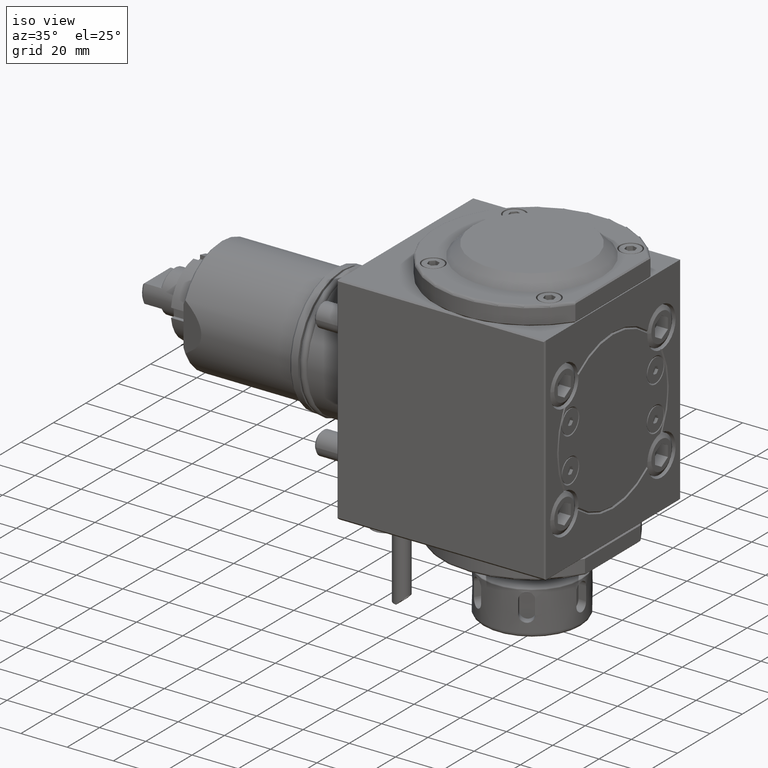
[diagram: clean part render]
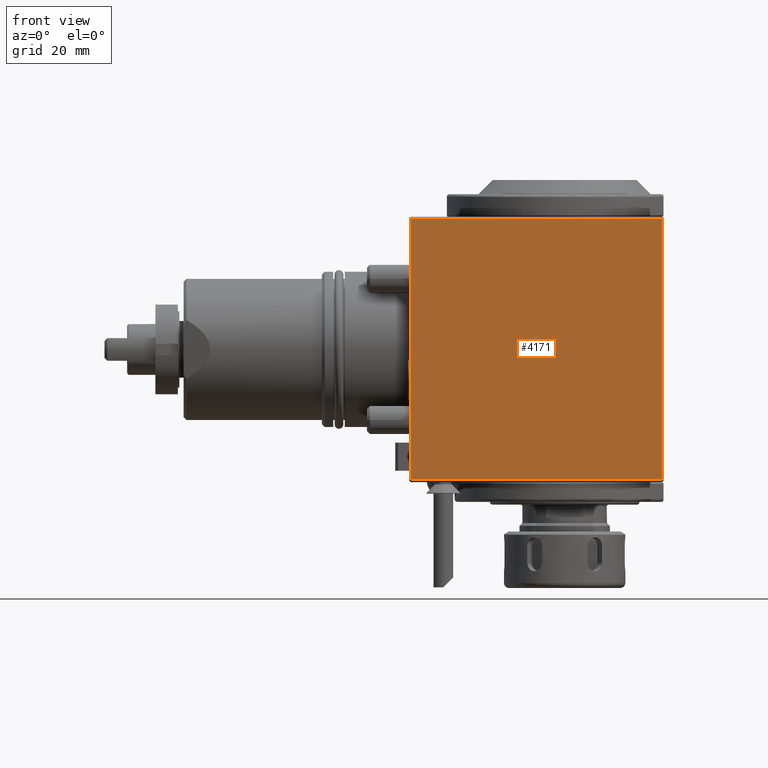
[diagram: tour spotlight — one face highlighted and labeled with its STEP entity id]
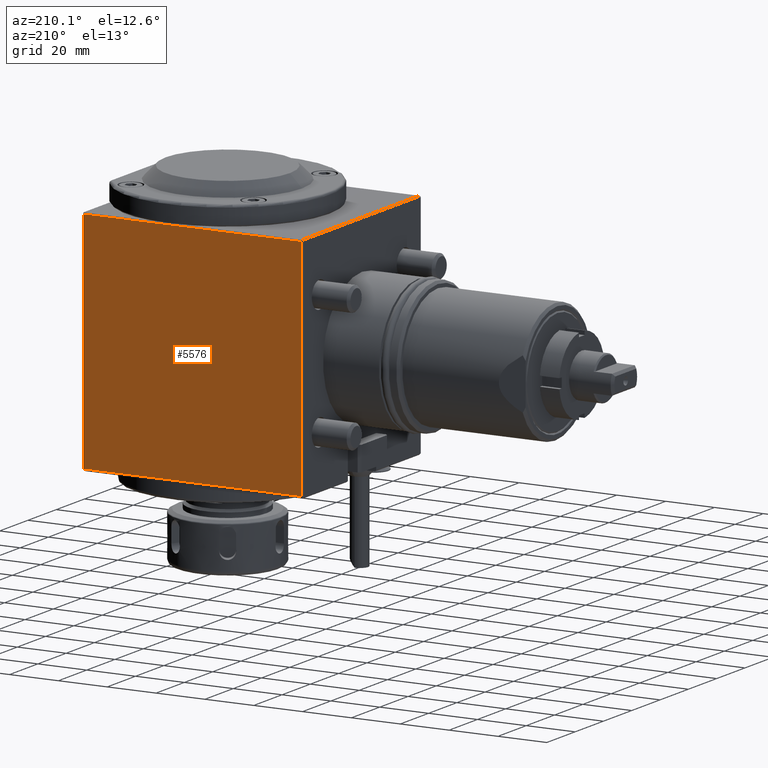
[diagram: tour spotlight — one face highlighted and labeled with its STEP entity id]
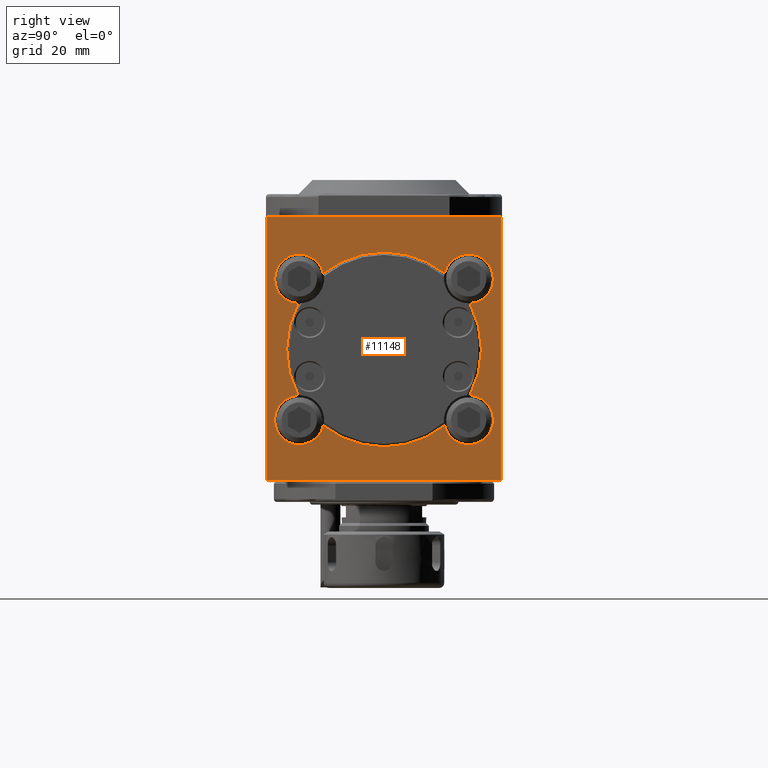
[diagram: tour spotlight — one face highlighted and labeled with its STEP entity id]
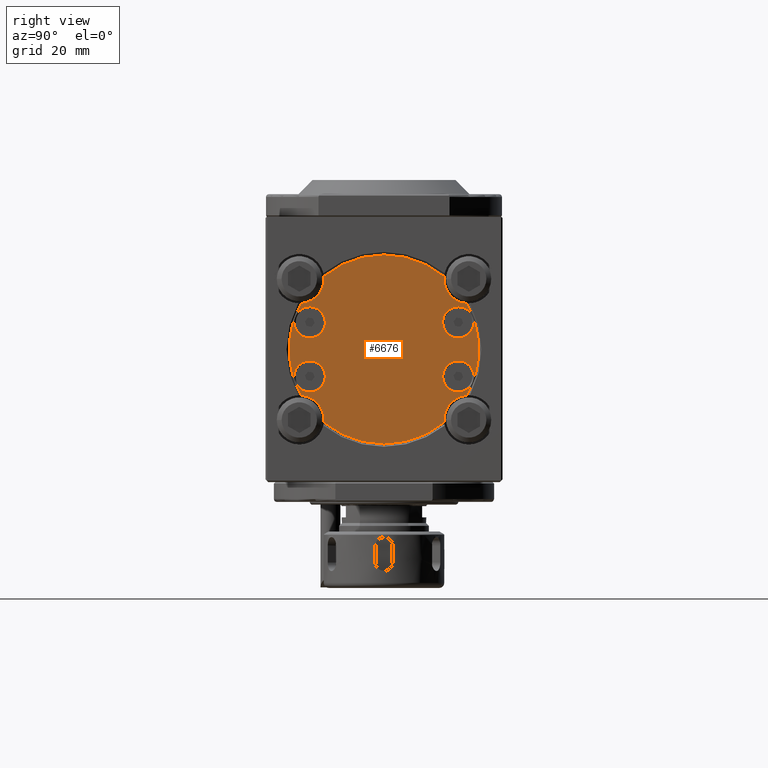
[diagram: tour spotlight — one face highlighted and labeled with its STEP entity id]
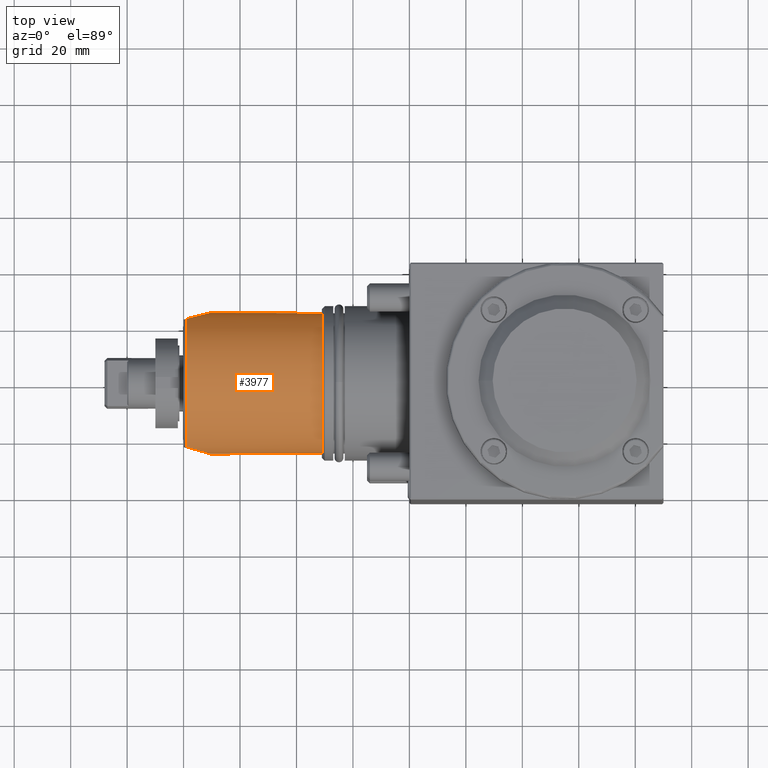
[diagram: tour spotlight — one face highlighted and labeled with its STEP entity id]
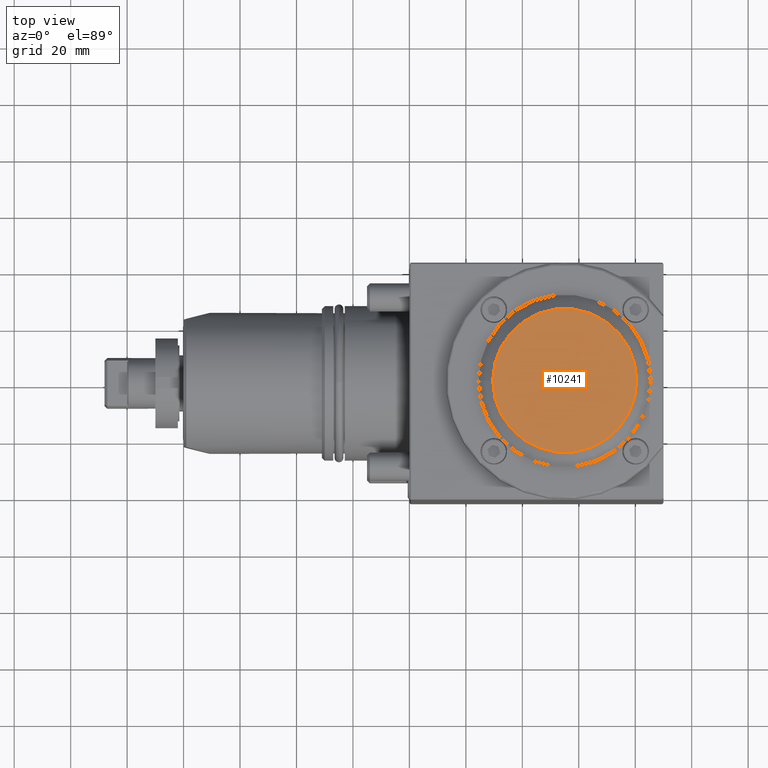
[diagram: tour spotlight — one face highlighted and labeled with its STEP entity id]
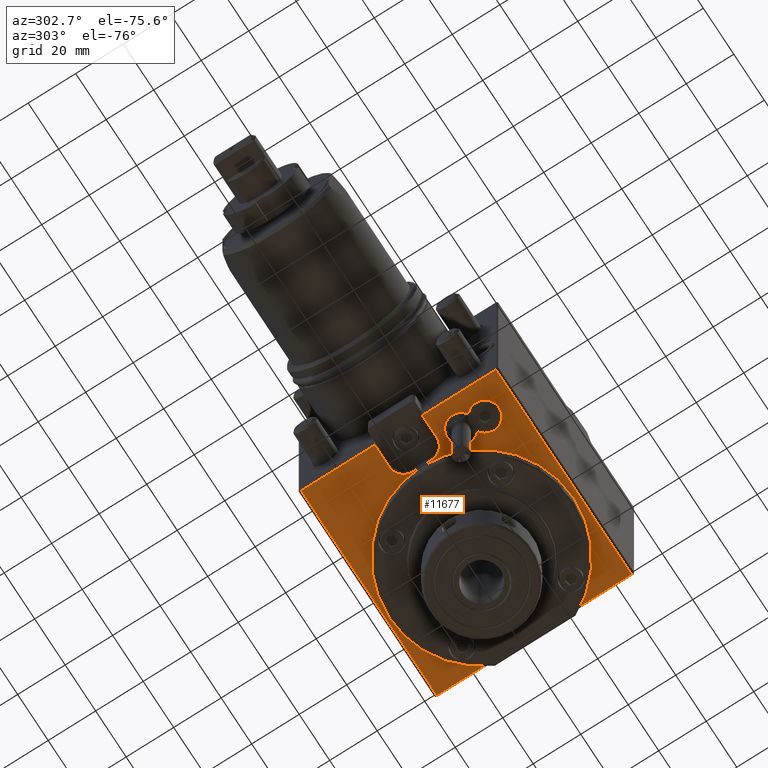
[diagram: tour spotlight — one face highlighted and labeled with its STEP entity id]
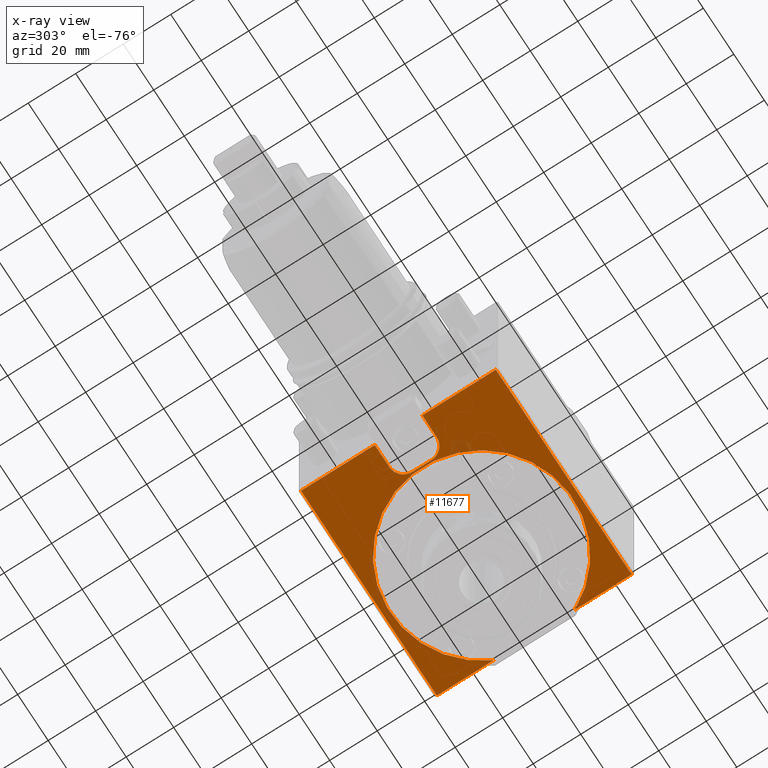
[diagram: x-ray of the same camera — body ghosted, this tour face saturated]
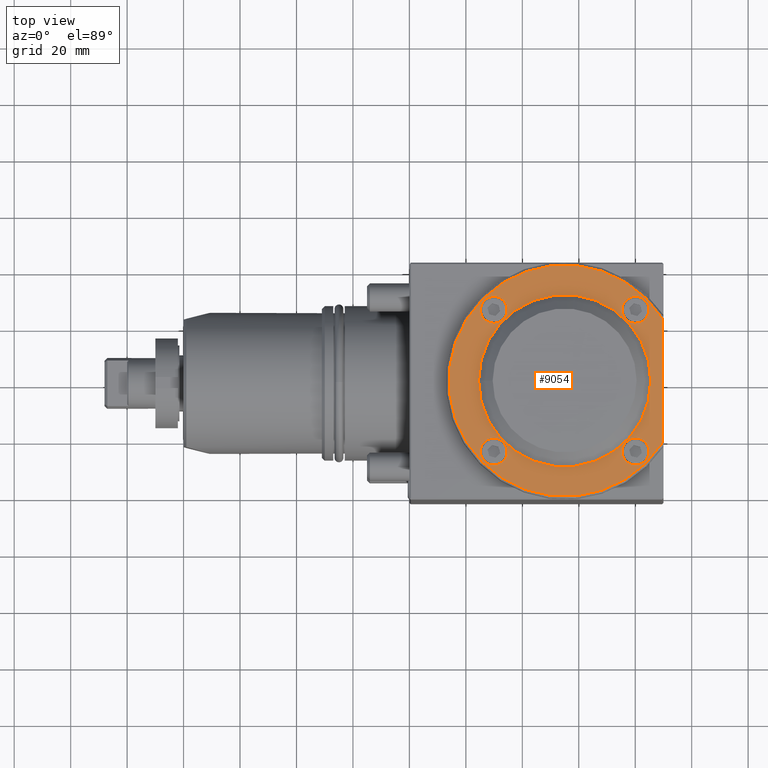
[diagram: tour spotlight — one face highlighted and labeled with its STEP entity id]
A machine part: a face-by-face anatomy tour. The part has 435 B-rep faces; the first image is the clean iso view, then the 8 largest visible faces are spotlighted one at a time (largest first), each with its STEP entity span.

Face 1 — front view, entity #4171. In plain terms, the highlighted planar face has unit normal (0, -1, 0).
Definition (entity closure, byte-faithful):
#182 = CARTESIAN_POINT ( 'NONE',  ( 0.5000000000026987301, -41.99999999999984368, 46.50000000000013500 ) ) ;
#417 = EDGE_CURVE ( 'NONE', #794, #7356, #2787, .T. ) ;
#794 = VERTEX_POINT ( 'NONE', #1497 ) ;
#914 = DIRECTION ( 'NONE',  ( 6.982962677686266711E-15, 3.568296771711887931E-15, 1.000000000000000000 ) ) ;
#1136 = DIRECTION ( 'NONE',  ( -6.982962677686266711E-15, -3.568296771711887931E-15, -1.000000000000000000 ) ) ;
#1159 = DIRECTION ( 'NONE',  ( 1.000000000000000000, -2.438088387897967896E-29, -6.982962677686266711E-15 ) ) ;
#1497 = CARTESIAN_POINT ( 'NONE',  ( 89.49999999999967315, -42.00000000000016342, -45.99999762080688015 ) ) ;
#1939 = CARTESIAN_POINT ( 'NONE',  ( 2.051885448576522184E-12, -42.00000000000016342, -45.99999762080625487 ) ) ;
#2226 = CARTESIAN_POINT ( 'NONE',  ( 2.697809479648681829E-12, -41.99999999999984368, 46.50000000000014211 ) ) ;
#2250 = EDGE_CURVE ( 'NONE', #6178, #794, #8640, .T. ) ;
#2544 = VECTOR ( 'NONE', #914, 1000.000000000000000 ) ;
#2787 = LINE ( 'NONE', #4531, #2544 ) ;
#3079 = VECTOR ( 'NONE', #1136, 1000.000000000000000 ) ;
#3378 = DIRECTION ( 'NONE',  ( 5.363993007928266549E-31, -1.000000000000000000, 3.568296771711887931E-15 ) ) ;
#3981 = VECTOR ( 'NONE', #1159, 1000.000000000000000 ) ;
#4061 = FACE_OUTER_BOUND ( 'NONE', #6567, .T. ) ;
#4171 = ADVANCED_FACE ( 'NONE', ( #4061 ), #10704, .T. ) ;
#4531 = CARTESIAN_POINT ( 'NONE',  ( 89.50000000000031264, -41.99999999999984368, 46.49999999999952394 ) ) ;
#5162 = VECTOR ( 'NONE', #8702, 1000.000000000000000 ) ;
#5166 = CARTESIAN_POINT ( 'NONE',  ( 0.5000000000020538016, -42.00000000000016342, -45.99999762080626198 ) ) ;
#5718 = LINE ( 'NONE', #10376, #3079 ) ;
#5958 = ORIENTED_EDGE ( 'NONE', *, *, #417, .T. ) ;
#5981 = DIRECTION ( 'NONE',  ( -6.982962677686266711E-15, -3.568296771711887931E-15, -1.000000000000000000 ) ) ;
#6158 = CARTESIAN_POINT ( 'NONE',  ( 2.697809479648681829E-12, -41.99999999999984368, 46.50000000000014211 ) ) ;
#6178 = VERTEX_POINT ( 'NONE', #5166 ) ;
#6269 = AXIS2_PLACEMENT_3D ( 'NONE', #2226, #3378, #5981 ) ;
#6567 = EDGE_LOOP ( 'NONE', ( #8766, #11029, #6622, #5958 ) ) ;
#6622 = ORIENTED_EDGE ( 'NONE', *, *, #2250, .T. ) ;
#7063 = LINE ( 'NONE', #6158, #5162 ) ;
#7342 = VERTEX_POINT ( 'NONE', #182 ) ;
#7356 = VERTEX_POINT ( 'NONE', #7365 ) ;
#7365 = CARTESIAN_POINT ( 'NONE',  ( 89.50000000000031264, -41.99999999999984368, 46.49999999999952394 ) ) ;
#8151 = EDGE_CURVE ( 'NONE', #7342, #6178, #5718, .T. ) ;
#8640 = LINE ( 'NONE', #1939, #3981 ) ;
#8702 = DIRECTION ( 'NONE',  ( 1.000000000000000000, -2.438088387897967896E-29, -6.982962677686266711E-15 ) ) ;
#8766 = ORIENTED_EDGE ( 'NONE', *, *, #10018, .F. ) ;
#10018 = EDGE_CURVE ( 'NONE', #7342, #7356, #7063, .T. ) ;
#10376 = CARTESIAN_POINT ( 'NONE',  ( 0.5000000000020518032, -42.00000000000016342, -45.99999762080626198 ) ) ;
#10704 = PLANE ( 'NONE',  #6269 ) ;
#11029 = ORIENTED_EDGE ( 'NONE', *, *, #8151, .T. ) ;

Face 2 — auxiliary view, entity #5576. In plain terms, the highlighted planar face has unit normal (-0, 1, -0).
Definition (entity closure, byte-faithful):
#517 = LINE ( 'NONE', #9624, #3415 ) ;
#692 = VECTOR ( 'NONE', #3121, 1000.000000000000000 ) ;
#1448 = DIRECTION ( 'NONE',  ( 6.982962677686266711E-15, 3.568296771711887931E-15, 1.000000000000000000 ) ) ;
#1748 = VERTEX_POINT ( 'NONE', #7041 ) ;
#2050 = ORIENTED_EDGE ( 'NONE', *, *, #7950, .T. ) ;
#2369 = LINE ( 'NONE', #11628, #8633 ) ;
#2425 = DIRECTION ( 'NONE',  ( 1.000000000000000000, -2.438088387897967896E-29, -6.982962677686266711E-15 ) ) ;
#2656 = ORIENTED_EDGE ( 'NONE', *, *, #6452, .T. ) ;
#3121 = DIRECTION ( 'NONE',  ( 6.982962677686266711E-15, 3.568296771711887931E-15, 1.000000000000000000 ) ) ;
#3258 = VERTEX_POINT ( 'NONE', #8996 ) ;
#3316 = DIRECTION ( 'NONE',  ( -5.363993007928266549E-31, 1.000000000000000000, -3.568296771711887931E-15 ) ) ;
#3415 = VECTOR ( 'NONE', #2425, 1000.000000000000000 ) ;
#3880 = CARTESIAN_POINT ( 'NONE',  ( 0.5000000000027007285, 42.00000000000016342, 46.49999999999984368 ) ) ;
#3893 = CARTESIAN_POINT ( 'NONE',  ( 89.49999999999967315, 41.99999999999984368, -45.99999762080717147 ) ) ;
#4616 = EDGE_CURVE ( 'NONE', #3258, #5882, #7721, .T. ) ;
#5105 = CARTESIAN_POINT ( 'NONE',  ( 89.49999999999967315, 41.99999999999984368, -45.99999762080717147 ) ) ;
#5204 = DIRECTION ( 'NONE',  ( 1.000000000000000000, -2.438088387897967896E-29, -6.982962677686266711E-15 ) ) ;
#5576 = ADVANCED_FACE ( 'NONE', ( #5859 ), #11368, .T. ) ;
#5627 = LINE ( 'NONE', #3893, #6356 ) ;
#5859 = FACE_OUTER_BOUND ( 'NONE', #10113, .T. ) ;
#5882 = VERTEX_POINT ( 'NONE', #3880 ) ;
#5950 = VERTEX_POINT ( 'NONE', #5105 ) ;
#6356 = VECTOR ( 'NONE', #10230, 1000.000000000000000 ) ;
#6396 = EDGE_CURVE ( 'NONE', #3258, #5950, #2369, .T. ) ;
#6452 = EDGE_CURVE ( 'NONE', #5882, #1748, #517, .T. ) ;
#7041 = CARTESIAN_POINT ( 'NONE',  ( 89.50000000000031264, 42.00000000000016342, 46.49999999999923261 ) ) ;
#7721 = LINE ( 'NONE', #11410, #692 ) ;
#7898 = ORIENTED_EDGE ( 'NONE', *, *, #6396, .F. ) ;
#7950 = EDGE_CURVE ( 'NONE', #1748, #5950, #5627, .T. ) ;
#8633 = VECTOR ( 'NONE', #5204, 1000.000000000000000 ) ;
#8996 = CARTESIAN_POINT ( 'NONE',  ( 0.5000000000020508040, 41.99999999999984368, -45.99999762080655330 ) ) ;
#9624 = CARTESIAN_POINT ( 'NONE',  ( 2.697809479648681829E-12, 42.00000000000016342, 46.49999999999985079 ) ) ;
#9690 = ORIENTED_EDGE ( 'NONE', *, *, #4616, .T. ) ;
#10113 = EDGE_LOOP ( 'NONE', ( #7898, #9690, #2656, #2050 ) ) ;
#10230 = DIRECTION ( 'NONE',  ( -6.982962677686266711E-15, -3.568296771711887931E-15, -1.000000000000000000 ) ) ;
#10576 = CARTESIAN_POINT ( 'NONE',  ( 2.051885448576522184E-12, 41.99999999999984368, -45.99999762080654619 ) ) ;
#11140 = AXIS2_PLACEMENT_3D ( 'NONE', #10576, #3316, #1448 ) ;
#11368 = PLANE ( 'NONE',  #11140 ) ;
#11410 = CARTESIAN_POINT ( 'NONE',  ( 0.5000000000026977309, 42.00000000000016342, 46.49999999999984368 ) ) ;
#11628 = CARTESIAN_POINT ( 'NONE',  ( 2.051885448576522184E-12, 41.99999999999984368, -45.99999762080654619 ) ) ;

Face 3 — right view, entity #11148. In plain terms, the highlighted planar face has unit normal (1, -0, -0).
Definition (entity closure, byte-faithful):
#58 = DIRECTION ( 'NONE',  ( 0.000000000000000000, 1.000000000000000000, -3.491481338843133355E-15 ) ) ;
#89 = VECTOR ( 'NONE', #9948, 1000.000000000000000 ) ;
#125 = ORIENTED_EDGE ( 'NONE', *, *, #5646, .F. ) ;
#153 = CARTESIAN_POINT ( 'NONE',  ( 90.00000000000011369, -30.42774064309234561, 16.26046122828903151 ) ) ;
#211 = ORIENTED_EDGE ( 'NONE', *, *, #2384, .F. ) ;
#315 = DIRECTION ( 'NONE',  ( 1.000000000000000000, -2.438088387897967896E-29, -6.982962677686266711E-15 ) ) ;
#423 = CARTESIAN_POINT ( 'NONE',  ( 89.99999999999967315, -41.50000000000016342, -46.49999762080688726 ) ) ;
#466 = DIRECTION ( 'NONE',  ( 0.000000000000000000, 1.000000000000000000, -3.491481338843133355E-15 ) ) ;
#641 = VECTOR ( 'NONE', #4810, 1000.000000000000000 ) ;
#667 = EDGE_CURVE ( 'NONE', #6861, #5429, #1561, .T. ) ;
#703 = VECTOR ( 'NONE', #7404, 1000.000000000000000 ) ;
#710 = CARTESIAN_POINT ( 'NONE',  ( 90.00000000000000000, 2.143061119186963224E-15, -6.291937854916596284E-13 ) ) ;
#898 = CARTESIAN_POINT ( 'NONE',  ( 90.00000000000000000, 2.143061119186963224E-15, -6.291937854916596284E-13 ) ) ;
#950 = AXIS2_PLACEMENT_3D ( 'NONE', #6159, #9892, #7243 ) ;
#957 = CIRCLE ( 'NONE', #4804, 8.750000000000000000 ) ;
#1037 = DIRECTION ( 'NONE',  ( 0.000000000000000000, 1.000000000000000000, -3.568574007723717789E-15 ) ) ;
#1121 = CARTESIAN_POINT ( 'NONE',  ( 90.00000000000032685, -41.49999999999983658, 46.99999999999951683 ) ) ;
#1193 = EDGE_CURVE ( 'NONE', #2084, #3783, #7769, .T. ) ;
#1287 = AXIS2_PLACEMENT_3D ( 'NONE', #5760, #11157, #4791 ) ;
#1299 = EDGE_CURVE ( 'NONE', #10773, #7850, #7297, .T. ) ;
#1524 = EDGE_CURVE ( 'NONE', #3783, #10773, #3738, .T. ) ;
#1561 = CIRCLE ( 'NONE', #4652, 8.750000000000000000 ) ;
#1774 = VERTEX_POINT ( 'NONE', #8974 ) ;
#2084 = VERTEX_POINT ( 'NONE', #10094 ) ;
#2175 = DIRECTION ( 'NONE',  ( 0.000000000000000000, 1.000000000000000000, -3.568574007723717789E-15 ) ) ;
#2242 = CARTESIAN_POINT ( 'NONE',  ( 89.99999999999980105, -21.48086591430129388, -26.99671090284605057 ) ) ;
#2273 = CIRCLE ( 'NONE', #3238, 8.750000000000000000 ) ;
#2384 = EDGE_CURVE ( 'NONE', #5429, #3440, #5322, .T. ) ;
#2431 = VERTEX_POINT ( 'NONE', #8021 ) ;
#2562 = CARTESIAN_POINT ( 'NONE',  ( 90.00000000000011369, 30.42774064309140414, 16.26046122829066576 ) ) ;
#2775 = EDGE_CURVE ( 'NONE', #2981, #1774, #7466, .T. ) ;
#2981 = VERTEX_POINT ( 'NONE', #153 ) ;
#3023 = CARTESIAN_POINT ( 'NONE',  ( 90.00000000000017053, 29.99999999998043876, 25.00000000000116884 ) ) ;
#3238 = AXIS2_PLACEMENT_3D ( 'NONE', #3023, #315, #3944 ) ;
#3392 = CARTESIAN_POINT ( 'NONE',  ( 89.99999999999967315, 41.49999999999984368, -46.49999762080717858 ) ) ;
#3440 = VERTEX_POINT ( 'NONE', #2562 ) ;
#3596 = CARTESIAN_POINT ( 'NONE',  ( 90.00000000000062528, 41.50000000000031264, 88.49999999999923261 ) ) ;
#3738 = LINE ( 'NONE', #9407, #641 ) ;
#3783 = VERTEX_POINT ( 'NONE', #1121 ) ;
#3944 = DIRECTION ( 'NONE',  ( 0.000000000000000000, 1.000000000000000000, -3.568574007723717789E-15 ) ) ;
#4003 = ORIENTED_EDGE ( 'NONE', *, *, #11814, .F. ) ;
#4230 = CIRCLE ( 'NONE', #10998, 34.50000000000000000 ) ;
#4397 = DIRECTION ( 'NONE',  ( 0.000000000000000000, 1.000000000000000000, -3.491481338843133355E-15 ) ) ;
#4652 = AXIS2_PLACEMENT_3D ( 'NONE', #7559, #9310, #1037 ) ;
#4720 = CARTESIAN_POINT ( 'NONE',  ( 89.99999999999988631, 30.42774064309334392, -16.26046122828843821 ) ) ;
#4791 = DIRECTION ( 'NONE',  ( 0.000000000000000000, 1.000000000000000000, -3.491481338843133355E-15 ) ) ;
#4804 = AXIS2_PLACEMENT_3D ( 'NONE', #11267, #6677, #10302 ) ;
#4810 = DIRECTION ( 'NONE',  ( -6.982962677686266711E-15, -3.568296771711887931E-15, -1.000000000000000000 ) ) ;
#4929 = ORIENTED_EDGE ( 'NONE', *, *, #1193, .T. ) ;
#4957 = EDGE_CURVE ( 'NONE', #7850, #2084, #11884, .T. ) ;
#5157 = VERTEX_POINT ( 'NONE', #2242 ) ;
#5179 = CIRCLE ( 'NONE', #7702, 34.50000000000000000 ) ;
#5322 = CIRCLE ( 'NONE', #10952, 34.50000000000000000 ) ;
#5429 = VERTEX_POINT ( 'NONE', #4720 ) ;
#5646 = EDGE_CURVE ( 'NONE', #1774, #5157, #6882, .T. ) ;
#5706 = ORIENTED_EDGE ( 'NONE', *, *, #1524, .T. ) ;
#5716 = AXIS2_PLACEMENT_3D ( 'NONE', #11607, #11485, #2175 ) ;
#5760 = CARTESIAN_POINT ( 'NONE',  ( 90.00000000000000000, 2.143061119186963224E-15, -6.291937854916596284E-13 ) ) ;
#6159 = CARTESIAN_POINT ( 'NONE',  ( 90.00000000000062528, 3.020572045837078458E-13, 88.49999999999937472 ) ) ;
#6221 = FACE_OUTER_BOUND ( 'NONE', #11164, .T. ) ;
#6482 = ORIENTED_EDGE ( 'NONE', *, *, #9867, .F. ) ;
#6510 = ORIENTED_EDGE ( 'NONE', *, *, #2775, .F. ) ;
#6677 = DIRECTION ( 'NONE',  ( 1.000000000000000000, -2.438088387897967896E-29, -6.982962677686266711E-15 ) ) ;
#6816 = VECTOR ( 'NONE', #8859, 1000.000000000000000 ) ;
#6861 = VERTEX_POINT ( 'NONE', #11731 ) ;
#6882 = CIRCLE ( 'NONE', #5716, 8.750000000000000000 ) ;
#7243 = DIRECTION ( 'NONE',  ( 0.000000000000000000, 1.000000000000000000, -3.491481338843133355E-15 ) ) ;
#7297 = LINE ( 'NONE', #10994, #89 ) ;
#7404 = DIRECTION ( 'NONE',  ( 6.982962677686266711E-15, 3.568296771711887931E-15, 1.000000000000000000 ) ) ;
#7466 = CIRCLE ( 'NONE', #1287, 34.50000000000000000 ) ;
#7559 = CARTESIAN_POINT ( 'NONE',  ( 89.99999999999981526, 29.99999999998031441, -24.99999999999883116 ) ) ;
#7637 = EDGE_CURVE ( 'NONE', #10611, #2981, #957, .T. ) ;
#7702 = AXIS2_PLACEMENT_3D ( 'NONE', #710, #8384, #58 ) ;
#7768 = ORIENTED_EDGE ( 'NONE', *, *, #1299, .T. ) ;
#7769 = LINE ( 'NONE', #11401, #6816 ) ;
#7850 = VERTEX_POINT ( 'NONE', #3392 ) ;
#8021 = CARTESIAN_POINT ( 'NONE',  ( 90.00000000000018474, 21.48086591426739389, 26.99671090287174380 ) ) ;
#8211 = ORIENTED_EDGE ( 'NONE', *, *, #11639, .F. ) ;
#8384 = DIRECTION ( 'NONE',  ( 1.000000000000000000, -2.438088387897967896E-29, -6.982962677686266711E-15 ) ) ;
#8408 = ORIENTED_EDGE ( 'NONE', *, *, #667, .F. ) ;
#8674 = DIRECTION ( 'NONE',  ( 1.000000000000000000, -2.438088387897967896E-29, -6.982962677686266711E-15 ) ) ;
#8859 = DIRECTION ( 'NONE',  ( 0.000000000000000000, -1.000000000000000000, 3.491481338843133355E-15 ) ) ;
#8974 = CARTESIAN_POINT ( 'NONE',  ( 89.99999999999988631, -30.42774064309440618, -16.26046122828637408 ) ) ;
#9111 = FACE_BOUND ( 'NONE', #9724, .T. ) ;
#9310 = DIRECTION ( 'NONE',  ( 1.000000000000000000, -2.438088387897967896E-29, -6.982962677686266711E-15 ) ) ;
#9334 = ORIENTED_EDGE ( 'NONE', *, *, #4957, .T. ) ;
#9407 = CARTESIAN_POINT ( 'NONE',  ( 90.00000000000062528, -41.49999999999968736, 88.49999999999950262 ) ) ;
#9612 = CARTESIAN_POINT ( 'NONE',  ( 90.00000000000018474, -21.48086591430035597, 26.99671090284554609 ) ) ;
#9724 = EDGE_LOOP ( 'NONE', ( #4003, #6482, #211, #8408, #8211, #125, #6510, #11207 ) ) ;
#9867 = EDGE_CURVE ( 'NONE', #3440, #2431, #2273, .T. ) ;
#9892 = DIRECTION ( 'NONE',  ( 1.000000000000000000, -2.438088387897967896E-29, -6.982962677686266711E-15 ) ) ;
#9948 = DIRECTION ( 'NONE',  ( 0.000000000000000000, 1.000000000000000000, -3.491481338843133355E-15 ) ) ;
#10014 = DIRECTION ( 'NONE',  ( 1.000000000000000000, -2.438088387897967896E-29, -6.982962677686266711E-15 ) ) ;
#10094 = CARTESIAN_POINT ( 'NONE',  ( 90.00000000000032685, 41.50000000000017053, 46.99999999999922551 ) ) ;
#10302 = DIRECTION ( 'NONE',  ( 0.000000000000000000, 1.000000000000000000, -3.568574007723717789E-15 ) ) ;
#10611 = VERTEX_POINT ( 'NONE', #9612 ) ;
#10773 = VERTEX_POINT ( 'NONE', #423 ) ;
#10952 = AXIS2_PLACEMENT_3D ( 'NONE', #898, #10014, #4397 ) ;
#10994 = CARTESIAN_POINT ( 'NONE',  ( 89.99999999999967315, -1.692927678532050874E-13, -46.49999762080702936 ) ) ;
#10998 = AXIS2_PLACEMENT_3D ( 'NONE', #11510, #8674, #466 ) ;
#11061 = PLANE ( 'NONE',  #950 ) ;
#11148 = ADVANCED_FACE ( 'NONE', ( #9111, #6221 ), #11061, .T. ) ;
#11157 = DIRECTION ( 'NONE',  ( 1.000000000000000000, -2.438088387897967896E-29, -6.982962677686266711E-15 ) ) ;
#11164 = EDGE_LOOP ( 'NONE', ( #7768, #9334, #4929, #5706 ) ) ;
#11207 = ORIENTED_EDGE ( 'NONE', *, *, #7637, .F. ) ;
#11267 = CARTESIAN_POINT ( 'NONE',  ( 90.00000000000017053, -30.00000000001956479, 25.00000000000137845 ) ) ;
#11401 = CARTESIAN_POINT ( 'NONE',  ( 90.00000000000032685, 41.50000000000017053, 46.99999999999922551 ) ) ;
#11485 = DIRECTION ( 'NONE',  ( 1.000000000000000000, -2.438088387897967896E-29, -6.982962677686266711E-15 ) ) ;
#11510 = CARTESIAN_POINT ( 'NONE',  ( 90.00000000000000000, 2.143061119186963224E-15, -6.291937854916596284E-13 ) ) ;
#11607 = CARTESIAN_POINT ( 'NONE',  ( 89.99999999999981526, -30.00000000001978506, -24.99999999999862510 ) ) ;
#11639 = EDGE_CURVE ( 'NONE', #5157, #6861, #5179, .T. ) ;
#11731 = CARTESIAN_POINT ( 'NONE',  ( 89.99999999999980105, 21.48086591426800851, -26.99671090287255026 ) ) ;
#11814 = EDGE_CURVE ( 'NONE', #2431, #10611, #4230, .T. ) ;
#11884 = LINE ( 'NONE', #3596, #703 ) ;

Face 4 — right view, entity #6676. In plain terms, the highlighted planar face has unit normal (1, -0, -0).
Definition (entity closure, byte-faithful):
#87 = DIRECTION ( 'NONE',  ( 1.000000000000000000, -2.438088387897967896E-29, -6.982962677686266711E-15 ) ) ;
#108 = ORIENTED_EDGE ( 'NONE', *, *, #2251, .T. ) ;
#407 = ORIENTED_EDGE ( 'NONE', *, *, #1504, .F. ) ;
#584 = EDGE_CURVE ( 'NONE', #11762, #820, #6006, .T. ) ;
#768 = AXIS2_PLACEMENT_3D ( 'NONE', #4138, #5091, #3290 ) ;
#778 = VERTEX_POINT ( 'NONE', #10756 ) ;
#820 = VERTEX_POINT ( 'NONE', #3192 ) ;
#823 = EDGE_CURVE ( 'NONE', #778, #8824, #4667, .T. ) ;
#900 = CIRCLE ( 'NONE', #2834, 5.499999999999888978 ) ;
#942 = VERTEX_POINT ( 'NONE', #11718 ) ;
#945 = VERTEX_POINT ( 'NONE', #5289 ) ;
#976 = CARTESIAN_POINT ( 'NONE',  ( 90.00000000000000000, 2.182847671676078552E-15, -6.290315383037885017E-13 ) ) ;
#988 = FACE_BOUND ( 'NONE', #5675, .T. ) ;
#1046 = FACE_BOUND ( 'NONE', #7489, .T. ) ;
#1062 = CIRCLE ( 'NONE', #7802, 5.499999999999889866 ) ;
#1162 = DIRECTION ( 'NONE',  ( 0.000000000000000000, 1.000000000000000000, -3.568574007723717789E-15 ) ) ;
#1220 = CIRCLE ( 'NONE', #2760, 8.750000000000000000 ) ;
#1330 = VERTEX_POINT ( 'NONE', #3999 ) ;
#1371 = CIRCLE ( 'NONE', #3493, 33.50000000000000000 ) ;
#1384 = DIRECTION ( 'NONE',  ( 1.000000000000000000, -2.438088387897967896E-29, -6.982962677686266711E-15 ) ) ;
#1504 = EDGE_CURVE ( 'NONE', #942, #945, #1220, .T. ) ;
#1944 = CIRCLE ( 'NONE', #11586, 33.50000000000000000 ) ;
#1946 = EDGE_CURVE ( 'NONE', #10180, #10180, #1062, .T. ) ;
#2126 = DIRECTION ( 'NONE',  ( 1.000000000000000000, -2.438088387897967896E-29, -6.982962677686266711E-15 ) ) ;
#2220 = CIRCLE ( 'NONE', #5308, 33.50000000000000000 ) ;
#2251 = EDGE_CURVE ( 'NONE', #2830, #820, #2220, .T. ) ;
#2317 = EDGE_LOOP ( 'NONE', ( #5585, #7545, #407, #8057, #2657, #108, #9981, #7509 ) ) ;
#2421 = ORIENTED_EDGE ( 'NONE', *, *, #11878, .T. ) ;
#2657 = ORIENTED_EDGE ( 'NONE', *, *, #10861, .F. ) ;
#2757 = CIRCLE ( 'NONE', #3133, 5.499999999999890754 ) ;
#2760 = AXIS2_PLACEMENT_3D ( 'NONE', #11113, #11235, #2952 ) ;
#2830 = VERTEX_POINT ( 'NONE', #9330 ) ;
#2834 = AXIS2_PLACEMENT_3D ( 'NONE', #5980, #5014, #10518 ) ;
#2865 = CARTESIAN_POINT ( 'NONE',  ( 90.00000000000062528, 3.020572045837078458E-13, 88.49999999999937472 ) ) ;
#2949 = AXIS2_PLACEMENT_3D ( 'NONE', #6039, #1384, #4947 ) ;
#2952 = DIRECTION ( 'NONE',  ( 0.000000000000000000, 1.000000000000000000, -3.568574007723717789E-15 ) ) ;
#2970 = CARTESIAN_POINT ( 'NONE',  ( 89.99999999999981526, 29.99999999998031441, -24.99999999999883116 ) ) ;
#2977 = DIRECTION ( 'NONE',  ( 0.000000000000000000, 1.000000000000000000, -3.491481338843133355E-15 ) ) ;
#3107 = ORIENTED_EDGE ( 'NONE', *, *, #3266, .T. ) ;
#3133 = AXIS2_PLACEMENT_3D ( 'NONE', #3559, #7068, #8934 ) ;
#3192 = CARTESIAN_POINT ( 'NONE',  ( 89.99999999999981526, 21.29262285220751139, -25.86260257734480206 ) ) ;
#3266 = EDGE_CURVE ( 'NONE', #11217, #11217, #2757, .T. ) ;
#3290 = DIRECTION ( 'NONE',  ( 7.569702440626219356E-15, 3.784851220313109678E-15, 1.000000000000000000 ) ) ;
#3420 = DIRECTION ( 'NONE',  ( 0.000000000000000000, 1.000000000000000000, -3.491481338843133355E-15 ) ) ;
#3493 = AXIS2_PLACEMENT_3D ( 'NONE', #10099, #11920, #11861 ) ;
#3525 = EDGE_LOOP ( 'NONE', ( #4977 ) ) ;
#3558 = AXIS2_PLACEMENT_3D ( 'NONE', #2865, #2126, #2977 ) ;
#3559 = CARTESIAN_POINT ( 'NONE',  ( 90.00000000001085709, -26.31000000001966654, 9.580000000001334115 ) ) ;
#3999 = CARTESIAN_POINT ( 'NONE',  ( 90.00000000001077183, 26.30999999998028471, -4.069999999998979767 ) ) ;
#4007 = PLANE ( 'NONE',  #3558 ) ;
#4138 = CARTESIAN_POINT ( 'NONE',  ( 90.00000000001072920, 26.30999999998026340, -9.569999999998868745 ) ) ;
#4225 = CARTESIAN_POINT ( 'NONE',  ( 90.00000000000011369, 29.27827878711860521, 16.27981545545707220 ) ) ;
#4350 = DIRECTION ( 'NONE',  ( -1.000000000000000000, -1.387778780781172779E-16, 7.760118794923876289E-15 ) ) ;
#4613 = VERTEX_POINT ( 'NONE', #7959 ) ;
#4667 = CIRCLE ( 'NONE', #2949, 8.750000000000000000 ) ;
#4668 = CARTESIAN_POINT ( 'NONE',  ( 90.00000000001089973, -26.31000000001964523, 15.08000000000122398 ) ) ;
#4831 = DIRECTION ( 'NONE',  ( 1.000000000000000000, -2.438088387897967896E-29, -6.982962677686266711E-15 ) ) ;
#4947 = DIRECTION ( 'NONE',  ( 0.000000000000000000, 1.000000000000000000, -3.568574007723717789E-15 ) ) ;
#4977 = ORIENTED_EDGE ( 'NONE', *, *, #5658, .T. ) ;
#5014 = DIRECTION ( 'NONE',  ( -1.000000000000000000, -1.387778780781172779E-16, 7.760118794923876289E-15 ) ) ;
#5091 = DIRECTION ( 'NONE',  ( -1.000000000000000000, -1.387778780781172779E-16, 7.760118794923876289E-15 ) ) ;
#5289 = CARTESIAN_POINT ( 'NONE',  ( 90.00000000000017053, -21.29262285224346130, 25.86260257731394674 ) ) ;
#5308 = AXIS2_PLACEMENT_3D ( 'NONE', #5621, #9370, #9306 ) ;
#5585 = ORIENTED_EDGE ( 'NONE', *, *, #823, .F. ) ;
#5621 = CARTESIAN_POINT ( 'NONE',  ( 90.00000000000000000, 2.182847671676078552E-15, -6.290315383037885017E-13 ) ) ;
#5658 = EDGE_CURVE ( 'NONE', #5758, #5758, #900, .T. ) ;
#5675 = EDGE_LOOP ( 'NONE', ( #3107 ) ) ;
#5758 = VERTEX_POINT ( 'NONE', #6850 ) ;
#5980 = CARTESIAN_POINT ( 'NONE',  ( 90.00000000001077183, 26.30999999998038419, 9.580000000001179572 ) ) ;
#6006 = CIRCLE ( 'NONE', #9095, 8.750000000000000000 ) ;
#6039 = CARTESIAN_POINT ( 'NONE',  ( 90.00000000000017053, 29.99999999998043876, 25.00000000000116884 ) ) ;
#6052 = CARTESIAN_POINT ( 'NONE',  ( 90.00000000001072920, -26.31000000001973405, -9.569999999998666240 ) ) ;
#6147 = EDGE_CURVE ( 'NONE', #778, #945, #7837, .T. ) ;
#6489 = EDGE_LOOP ( 'NONE', ( #7098 ) ) ;
#6676 = ADVANCED_FACE ( 'NONE', ( #8426, #1046, #10408, #988, #10236 ), #4007, .T. ) ;
#6850 = CARTESIAN_POINT ( 'NONE',  ( 90.00000000001081446, 26.30999999998040551, 15.08000000000106766 ) ) ;
#6924 = CIRCLE ( 'NONE', #7305, 8.750000000000000000 ) ;
#7068 = DIRECTION ( 'NONE',  ( -1.000000000000000000, -1.387778780781172779E-16, 7.760118794923876289E-15 ) ) ;
#7098 = ORIENTED_EDGE ( 'NONE', *, *, #1946, .T. ) ;
#7305 = AXIS2_PLACEMENT_3D ( 'NONE', #10501, #7664, #11409 ) ;
#7489 = EDGE_LOOP ( 'NONE', ( #2421 ) ) ;
#7509 = ORIENTED_EDGE ( 'NONE', *, *, #9632, .T. ) ;
#7519 = CARTESIAN_POINT ( 'NONE',  ( 90.00000000001077183, -26.31000000001971273, -4.069999999998777263 ) ) ;
#7545 = ORIENTED_EDGE ( 'NONE', *, *, #6147, .T. ) ;
#7595 = CARTESIAN_POINT ( 'NONE',  ( 89.99999999999988631, 29.27827878712074394, -16.27981545545457465 ) ) ;
#7664 = DIRECTION ( 'NONE',  ( 1.000000000000000000, -2.438088387897967896E-29, -6.982962677686266711E-15 ) ) ;
#7802 = AXIS2_PLACEMENT_3D ( 'NONE', #6052, #4350, #10768 ) ;
#7837 = CIRCLE ( 'NONE', #9394, 33.50000000000000000 ) ;
#7957 = DIRECTION ( 'NONE',  ( 1.000000000000000000, -2.438088387897967896E-29, -6.982962677686266711E-15 ) ) ;
#7959 = CARTESIAN_POINT ( 'NONE',  ( 89.99999999999988631, -29.27827878711895337, -16.27981545545777564 ) ) ;
#8057 = ORIENTED_EDGE ( 'NONE', *, *, #8662, .T. ) ;
#8426 = FACE_BOUND ( 'NONE', #3525, .T. ) ;
#8662 = EDGE_CURVE ( 'NONE', #942, #4613, #1944, .T. ) ;
#8824 = VERTEX_POINT ( 'NONE', #4225 ) ;
#8934 = DIRECTION ( 'NONE',  ( 7.569702440626217778E-15, 3.784851220313108889E-15, 1.000000000000000000 ) ) ;
#9041 = CARTESIAN_POINT ( 'NONE',  ( 90.00000000000000000, 2.182847671676078552E-15, -6.290315383037885017E-13 ) ) ;
#9095 = AXIS2_PLACEMENT_3D ( 'NONE', #2970, #87, #1162 ) ;
#9250 = CIRCLE ( 'NONE', #768, 5.499999999999889866 ) ;
#9306 = DIRECTION ( 'NONE',  ( 0.000000000000000000, 1.000000000000000000, -3.491481338843133355E-15 ) ) ;
#9330 = CARTESIAN_POINT ( 'NONE',  ( 89.99999999999981526, -21.29262285224399065, -25.86260257731480650 ) ) ;
#9370 = DIRECTION ( 'NONE',  ( 1.000000000000000000, -2.438088387897967896E-29, -6.982962677686266711E-15 ) ) ;
#9394 = AXIS2_PLACEMENT_3D ( 'NONE', #9041, #7957, #3420 ) ;
#9632 = EDGE_CURVE ( 'NONE', #11762, #8824, #1371, .T. ) ;
#9981 = ORIENTED_EDGE ( 'NONE', *, *, #584, .F. ) ;
#10099 = CARTESIAN_POINT ( 'NONE',  ( 90.00000000000000000, 2.182847671676078552E-15, -6.290315383037885017E-13 ) ) ;
#10156 = DIRECTION ( 'NONE',  ( 0.000000000000000000, 1.000000000000000000, -3.491481338843133355E-15 ) ) ;
#10180 = VERTEX_POINT ( 'NONE', #7519 ) ;
#10236 = FACE_OUTER_BOUND ( 'NONE', #2317, .T. ) ;
#10408 = FACE_BOUND ( 'NONE', #6489, .T. ) ;
#10501 = CARTESIAN_POINT ( 'NONE',  ( 89.99999999999981526, -30.00000000001978506, -24.99999999999862510 ) ) ;
#10518 = DIRECTION ( 'NONE',  ( 7.569702440626219356E-15, 3.784851220313109678E-15, 1.000000000000000000 ) ) ;
#10756 = CARTESIAN_POINT ( 'NONE',  ( 90.00000000000017053, 21.29262285220729112, 25.86260257734360124 ) ) ;
#10768 = DIRECTION ( 'NONE',  ( 7.569702440626219356E-15, 3.784851220313109678E-15, 1.000000000000000000 ) ) ;
#10861 = EDGE_CURVE ( 'NONE', #2830, #4613, #6924, .T. ) ;
#11113 = CARTESIAN_POINT ( 'NONE',  ( 90.00000000000017053, -30.00000000001956479, 25.00000000000137845 ) ) ;
#11217 = VERTEX_POINT ( 'NONE', #4668 ) ;
#11235 = DIRECTION ( 'NONE',  ( 1.000000000000000000, -2.438088387897967896E-29, -6.982962677686266711E-15 ) ) ;
#11409 = DIRECTION ( 'NONE',  ( 0.000000000000000000, 1.000000000000000000, -3.568574007723717789E-15 ) ) ;
#11586 = AXIS2_PLACEMENT_3D ( 'NONE', #976, #4831, #10156 ) ;
#11718 = CARTESIAN_POINT ( 'NONE',  ( 90.00000000000011369, -29.27827878711659437, 16.27981545546072084 ) ) ;
#11762 = VERTEX_POINT ( 'NONE', #7595 ) ;
#11861 = DIRECTION ( 'NONE',  ( 0.000000000000000000, 1.000000000000000000, -3.491481338843133355E-15 ) ) ;
#11878 = EDGE_CURVE ( 'NONE', #1330, #1330, #9250, .T. ) ;
#11920 = DIRECTION ( 'NONE',  ( 1.000000000000000000, -2.438088387897967896E-29, -6.982962677686266711E-15 ) ) ;

Face 5 — top view, entity #3977. In plain terms, the highlighted cylindrical surface (bore or boss wall) has radius 25 mm, axis along (-1, 0, 0).
Definition (entity closure, byte-faithful):
#78 = DIRECTION ( 'NONE',  ( -6.661337133451129209E-15, -3.491481338843133355E-15, -1.000000000000000000 ) ) ;
#356 = CARTESIAN_POINT ( 'NONE',  ( -78.99999999999823785, -22.72243570328381423, 10.42550115444323211 ) ) ;
#455 = FACE_OUTER_BOUND ( 'NONE', #6990, .T. ) ;
#493 = CIRCLE ( 'NONE', #7233, 25.00000126888915020 ) ;
#1068 = EDGE_CURVE ( 'NONE', #11913, #7993, #3342, .T. ) ;
#1085 = EDGE_CURVE ( 'NONE', #4504, #11913, #10729, .T. ) ;
#1152 = CARTESIAN_POINT ( 'NONE',  ( -78.99999999999830891, 1.887528324784414578E-27, 5.406095985063541791E-13 ) ) ;
#1168 = ORIENTED_EDGE ( 'NONE', *, *, #1068, .F. ) ;
#1204 = VERTEX_POINT ( 'NONE', #1311 ) ;
#1311 = CARTESIAN_POINT ( 'NONE',  ( -78.99999999999837996, 22.72243570324441819, -10.42550115452803006 ) ) ;
#1409 = CYLINDRICAL_SURFACE ( 'NONE', #8597, 25.00000253777830039 ) ;
#1426 = CARTESIAN_POINT ( 'NONE',  ( -67.48346047769736344, -25.80828251528580353, 3.699879254781858418 ) ) ;
#2449 =( BOUNDED_CURVE ( )  B_SPLINE_CURVE ( 3, ( #10846, #8119, #10176, #11027 ),
 .UNSPECIFIED., .F., .T. ) 
 B_SPLINE_CURVE_WITH_KNOTS ( ( 4, 4 ),
 ( 2.711428554042266903, 3.571756753137318885 ),
 .UNSPECIFIED. ) 
 CURVE ( )  GEOMETRIC_REPRESENTATION_ITEM ( )  RATIONAL_B_SPLINE_CURVE ( ( 1.000000000000000000, 0.9392648860843474390, 0.9392648860843474390, 1.000000000000000000 ) ) 
 REPRESENTATION_ITEM ( '' )  );
#2730 = CARTESIAN_POINT ( 'NONE',  ( -78.99999999999823785, 22.72243570324448569, 10.42550115452895199 ) ) ;
#2734 = DIRECTION ( 'NONE',  ( -6.661337471551031440E-15, -3.491481338843133355E-15, -1.000000000000000000 ) ) ;
#2817 = ORIENTED_EDGE ( 'NONE', *, *, #5885, .F. ) ;
#3177 = CARTESIAN_POINT ( 'NONE',  ( -67.48346047769737766, -25.80828251528582840, -3.699879254780769955 ) ) ;
#3342 = CIRCLE ( 'NONE', #10300, 25.00000380666745059 ) ;
#3832 = DIRECTION ( 'NONE',  ( -6.938893551719758960E-15, -3.491481338843133750E-15, -1.000000000000000000 ) ) ;
#3977 = ADVANCED_FACE ( 'NONE', ( #455, #9681 ), #1409, .T. ) ;
#4141 = EDGE_CURVE ( 'NONE', #8242, #8242, #493, .T. ) ;
#4185 = CIRCLE ( 'NONE', #8043, 25.00000380666745059 ) ;
#4335 = ORIENTED_EDGE ( 'NONE', *, *, #4141, .T. ) ;
#4504 = VERTEX_POINT ( 'NONE', #5107 ) ;
#4721 = CARTESIAN_POINT ( 'NONE',  ( -30.99999999999839773, 7.275075551497108162E-28, 2.083664452265876882E-13 ) ) ;
#5107 = CARTESIAN_POINT ( 'NONE',  ( -78.99999999999837996, -22.72243570328388529, -10.42550115444200998 ) ) ;
#5827 = CARTESIAN_POINT ( 'NONE',  ( -78.99999999999823785, -22.72243570328381423, 10.42550115444323211 ) ) ;
#5885 = EDGE_CURVE ( 'NONE', #1204, #4504, #4185, .T. ) ;
#6608 = DIRECTION ( 'NONE',  ( -1.000000000000000000, 2.416709936738970001E-29, 6.921732359995147848E-15 ) ) ;
#6990 = EDGE_LOOP ( 'NONE', ( #8465, #1168, #7095, #2817 ) ) ;
#7095 = ORIENTED_EDGE ( 'NONE', *, *, #1085, .F. ) ;
#7233 = AXIS2_PLACEMENT_3D ( 'NONE', #4721, #6608, #3832 ) ;
#7425 = DIRECTION ( 'NONE',  ( -1.000000000000000000, 2.416709936738970001E-29, 6.921732359995147848E-15 ) ) ;
#7602 = CARTESIAN_POINT ( 'NONE',  ( -78.99999999999830891, 1.887528324784414578E-27, 5.406095985063541791E-13 ) ) ;
#7608 = DIRECTION ( 'NONE',  ( -1.000000000000000000, 2.416709936738970001E-29, 6.921732359995147848E-15 ) ) ;
#7993 = VERTEX_POINT ( 'NONE', #2730 ) ;
#8043 = AXIS2_PLACEMENT_3D ( 'NONE', #1152, #7608, #78 ) ;
#8119 = CARTESIAN_POINT ( 'NONE',  ( -67.48346047749490140, 25.80828251530068229, 3.699879254816302421 ) ) ;
#8242 = VERTEX_POINT ( 'NONE', #9388 ) ;
#8336 = DIRECTION ( 'NONE',  ( -6.661337133451129209E-15, -3.491481338843133355E-15, -1.000000000000000000 ) ) ;
#8465 = ORIENTED_EDGE ( 'NONE', *, *, #8469, .F. ) ;
#8469 = EDGE_CURVE ( 'NONE', #7993, #1204, #2449, .T. ) ;
#8597 = AXIS2_PLACEMENT_3D ( 'NONE', #11812, #11024, #2734 ) ;
#9388 = CARTESIAN_POINT ( 'NONE',  ( -30.99999999999857181, -8.728703790138039897E-14, -25.00000126888894414 ) ) ;
#9681 = FACE_OUTER_BOUND ( 'NONE', #10387, .T. ) ;
#9697 = CARTESIAN_POINT ( 'NONE',  ( -78.99999999999837996, -22.72243570328388529, -10.42550115444200998 ) ) ;
#10176 = CARTESIAN_POINT ( 'NONE',  ( -67.48346047749494403, 25.80828251530066098, -3.699879254815525709 ) ) ;
#10300 = AXIS2_PLACEMENT_3D ( 'NONE', #7602, #7425, #8336 ) ;
#10387 = EDGE_LOOP ( 'NONE', ( #4335 ) ) ;
#10729 =( BOUNDED_CURVE ( )  B_SPLINE_CURVE ( 3, ( #9697, #3177, #1426, #356 ),
 .UNSPECIFIED., .F., .T. ) 
 B_SPLINE_CURVE_WITH_KNOTS ( ( 4, 4 ),
 ( 2.711428554046044770, 3.571756753133541906 ),
 .UNSPECIFIED. ) 
 CURVE ( )  GEOMETRIC_REPRESENTATION_ITEM ( )  RATIONAL_B_SPLINE_CURVE ( ( 1.000000000000000000, 0.9392648860853975989, 0.9392648860853975989, 1.000000000000000000 ) ) 
 REPRESENTATION_ITEM ( '' )  );
#10846 = CARTESIAN_POINT ( 'NONE',  ( -78.99999999999823785, 22.72243570324448569, 10.42550115452895199 ) ) ;
#11024 = DIRECTION ( 'NONE',  ( -1.000000000000000000, 2.416709936738970001E-29, 6.921732359995147848E-15 ) ) ;
#11027 = CARTESIAN_POINT ( 'NONE',  ( -78.99999999999837996, 22.72243570324441819, -10.42550115452803006 ) ) ;
#11812 = CARTESIAN_POINT ( 'NONE',  ( 101.3755630758570021, -2.471625831518649601E-27, -7.079017733881394778E-13 ) ) ;
#11913 = VERTEX_POINT ( 'NONE', #5827 ) ;

Face 6 — top view, entity #10241. In plain terms, the highlighted planar face has unit normal (0, 0, 1).
Definition (entity closure, byte-faithful):
#299 = CARTESIAN_POINT ( 'NONE',  ( 55.00000000001111289, -1.952430736633471130E-11, 60.00000000000152056 ) ) ;
#500 = AXIS2_PLACEMENT_3D ( 'NONE', #1207, #6712, #10390 ) ;
#884 = CIRCLE ( 'NONE', #500, 25.50000000000000000 ) ;
#1207 = CARTESIAN_POINT ( 'NONE',  ( 55.00000000001111289, -1.952430736633471130E-11, 60.00000000000152056 ) ) ;
#4475 = EDGE_CURVE ( 'NONE', #6430, #6430, #884, .T. ) ;
#4636 = DIRECTION ( 'NONE',  ( 6.982962677686266711E-15, 3.158414431455586393E-15, 1.000000000000000000 ) ) ;
#4871 = FACE_OUTER_BOUND ( 'NONE', #9417, .T. ) ;
#6326 = AXIS2_PLACEMENT_3D ( 'NONE', #299, #4636, #10327 ) ;
#6430 = VERTEX_POINT ( 'NONE', #8308 ) ;
#6712 = DIRECTION ( 'NONE',  ( 6.982962677686266711E-15, 3.158414431455586393E-15, 1.000000000000000000 ) ) ;
#7416 = ORIENTED_EDGE ( 'NONE', *, *, #4475, .T. ) ;
#8308 = CARTESIAN_POINT ( 'NONE',  ( 29.50000000001111644, -1.952784620222570076E-11, 60.00000000000169820 ) ) ;
#8573 = PLANE ( 'NONE',  #6326 ) ;
#9417 = EDGE_LOOP ( 'NONE', ( #7416 ) ) ;
#10241 = ADVANCED_FACE ( 'NONE', ( #4871 ), #8573, .T. ) ;
#10327 = DIRECTION ( 'NONE',  ( -1.000000000000000000, -1.387778780781197924E-16, 6.982962677686267499E-15 ) ) ;
#10390 = DIRECTION ( 'NONE',  ( -1.000000000000000000, -1.387778780780802261E-16, 7.074950647121095709E-15 ) ) ;

Face 7 — auxiliary view, entity #11677. An x-ray twin of the same camera follows (body ghosted, this face saturated) — the face is partly hidden behind the body. In plain terms, the highlighted planar face has unit normal (-0, -0, -1).
Definition (entity closure, byte-faithful):
#289 = EDGE_CURVE ( 'NONE', #10726, #1009, #6626, .T. ) ;
#390 = AXIS2_PLACEMENT_3D ( 'NONE', #2759, #5655, #6444 ) ;
#575 = CARTESIAN_POINT ( 'NONE',  ( 89.49999999999965894, -41.00000000000017053, -46.99999762080688015 ) ) ;
#616 = EDGE_CURVE ( 'NONE', #8435, #2976, #4848, .T. ) ;
#671 = VERTEX_POINT ( 'NONE', #11196 ) ;
#868 = LINE ( 'NONE', #9194, #2427 ) ;
#1009 = VERTEX_POINT ( 'NONE', #1022 ) ;
#1022 = CARTESIAN_POINT ( 'NONE',  ( 89.49999999999965894, -41.00000000000017053, -46.99999762080688015 ) ) ;
#1120 = CARTESIAN_POINT ( 'NONE',  ( 10.00000000001327294, -4.000000000019823254, -46.99999762080645382 ) ) ;
#1300 = ORIENTED_EDGE ( 'NONE', *, *, #3891, .T. ) ;
#1473 = VERTEX_POINT ( 'NONE', #5778 ) ;
#1676 = ORIENTED_EDGE ( 'NONE', *, *, #2786, .T. ) ;
#1708 = CARTESIAN_POINT ( 'NONE',  ( 2.040600371678420529E-12, -10.00000000001982414, -46.99999762080636856 ) ) ;
#1768 = LINE ( 'NONE', #1708, #4070 ) ;
#1773 = CARTESIAN_POINT ( 'NONE',  ( 89.49999999999965894, 40.99999999999983658, -46.99999762080717147 ) ) ;
#1780 = CARTESIAN_POINT ( 'NONE',  ( 2.044902485898835740E-12, -41.00000000000017053, -46.99999762080625487 ) ) ;
#1802 = CARTESIAN_POINT ( 'NONE',  ( 0.5000000000020448088, -10.00000000001982414, -46.99999762080637566 ) ) ;
#1844 = EDGE_CURVE ( 'NONE', #2645, #10279, #2127, .T. ) ;
#1964 = ORIENTED_EDGE ( 'NONE', *, *, #11240, .T. ) ;
#2127 = LINE ( 'NONE', #9548, #10329 ) ;
#2311 = CARTESIAN_POINT ( 'NONE',  ( 16.00000000001326939, 3.999999999980176746, -46.99999762080652488 ) ) ;
#2427 = VECTOR ( 'NONE', #4424, 1000.000000000000000 ) ;
#2434 = EDGE_LOOP ( 'NONE', ( #11574, #1964, #8956, #8322, #10197, #3756, #10931, #1676, #4968, #9215, #10917, #1300 ) ) ;
#2645 = VERTEX_POINT ( 'NONE', #1773 ) ;
#2759 = CARTESIAN_POINT ( 'NONE',  ( 2.044902485898835740E-12, -41.00000000000017053, -46.99999762080625487 ) ) ;
#2786 = EDGE_CURVE ( 'NONE', #671, #3982, #9448, .T. ) ;
#2875 = DIRECTION ( 'NONE',  ( 3.469446951953614583E-15, -1.000000000000000000, 3.469446951953614583E-15 ) ) ;
#2888 = PLANE ( 'NONE',  #390 ) ;
#2976 = VERTEX_POINT ( 'NONE', #4718 ) ;
#2999 = CIRCLE ( 'NONE', #11689, 38.49998837117410488 ) ;
#3022 = DIRECTION ( 'NONE',  ( 0.000000000000000000, -1.000000000000000000, 3.469446951953614189E-15 ) ) ;
#3390 = CIRCLE ( 'NONE', #9954, 5.999999999999999112 ) ;
#3395 = DIRECTION ( 'NONE',  ( 0.000000000000000000, -1.000000000000000000, 3.491481338843133355E-15 ) ) ;
#3712 = DIRECTION ( 'NONE',  ( 1.000000000000000000, 1.387778780781197924E-16, -6.982962677686267499E-15 ) ) ;
#3756 = ORIENTED_EDGE ( 'NONE', *, *, #616, .T. ) ;
#3764 = EDGE_CURVE ( 'NONE', #2976, #671, #3961, .T. ) ;
#3891 = EDGE_CURVE ( 'NONE', #1473, #1009, #8050, .T. ) ;
#3946 = DIRECTION ( 'NONE',  ( -1.000000000000000000, 2.433175604934302069E-29, 7.029011532247616106E-15 ) ) ;
#3961 = LINE ( 'NONE', #6623, #7383 ) ;
#3982 = VERTEX_POINT ( 'NONE', #6420 ) ;
#4015 = DIRECTION ( 'NONE',  ( 0.000000000000000000, 1.000000000000000000, -3.491481338843133355E-15 ) ) ;
#4070 = VECTOR ( 'NONE', #3712, 1000.000000000000000 ) ;
#4075 = DIRECTION ( 'NONE',  ( -1.000000000000000000, -1.387778780781197924E-16, 6.982962677686267499E-15 ) ) ;
#4106 = AXIS2_PLACEMENT_3D ( 'NONE', #8476, #11305, #3022 ) ;
#4126 = CARTESIAN_POINT ( 'NONE',  ( 0.5000000000020458080, -41.00000000000017053, -46.99999762080626198 ) ) ;
#4349 = CARTESIAN_POINT ( 'NONE',  ( 10.00000000001329248, -10.00000000001982414, -46.99999762080643251 ) ) ;
#4424 = DIRECTION ( 'NONE',  ( 1.000000000000000000, -2.438088387897967896E-29, -6.982962677686266711E-15 ) ) ;
#4560 = DIRECTION ( 'NONE',  ( 1.000000000000000000, -2.438088387897967896E-29, -6.982962677686266711E-15 ) ) ;
#4686 = EDGE_CURVE ( 'NONE', #10279, #1473, #2999, .T. ) ;
#4718 = CARTESIAN_POINT ( 'NONE',  ( 10.00000000001327294, 9.999999999980174081, -46.99999762080650356 ) ) ;
#4784 = DIRECTION ( 'NONE',  ( 0.000000000000000000, -1.000000000000000000, 3.491481338843133355E-15 ) ) ;
#4848 = CIRCLE ( 'NONE', #4106, 6.000000000000000000 ) ;
#4968 = ORIENTED_EDGE ( 'NONE', *, *, #5338, .T. ) ;
#4984 = EDGE_CURVE ( 'NONE', #6841, #5651, #3390, .T. ) ;
#5280 = DIRECTION ( 'NONE',  ( 6.940284708437133209E-15, 3.491481338843133355E-15, 1.000000000000000000 ) ) ;
#5338 = EDGE_CURVE ( 'NONE', #3982, #2645, #868, .T. ) ;
#5439 = VECTOR ( 'NONE', #3395, 1000.000000000000000 ) ;
#5583 = DIRECTION ( 'NONE',  ( 6.982962677686266711E-15, 3.491481338843133355E-15, 1.000000000000000000 ) ) ;
#5651 = VERTEX_POINT ( 'NONE', #6838 ) ;
#5655 = DIRECTION ( 'NONE',  ( -6.982962677686266711E-15, -3.491481338843133355E-15, -1.000000000000000000 ) ) ;
#5766 = VECTOR ( 'NONE', #9837, 1000.000000000000000 ) ;
#5778 = CARTESIAN_POINT ( 'NONE',  ( 89.50000000001847411, -17.08798129034231295, -46.99999762081296240 ) ) ;
#6420 = CARTESIAN_POINT ( 'NONE',  ( 0.5000000000020448088, 40.99999999999983658, -46.99999762080655330 ) ) ;
#6444 = DIRECTION ( 'NONE',  ( -1.000000000000000000, 2.438088387897967896E-29, 6.982962677686266711E-15 ) ) ;
#6539 = VECTOR ( 'NONE', #11362, 1000.000000000000000 ) ;
#6621 = CARTESIAN_POINT ( 'NONE',  ( 0.5000000000020448088, 40.99999999999983658, -46.99999762080655330 ) ) ;
#6623 = CARTESIAN_POINT ( 'NONE',  ( 2.037824814116855618E-12, 9.999999999980174081, -46.99999762080643251 ) ) ;
#6626 = LINE ( 'NONE', #1780, #6991 ) ;
#6838 = CARTESIAN_POINT ( 'NONE',  ( 16.00000000001326939, -4.000000000019823254, -46.99999762080649646 ) ) ;
#6841 = VERTEX_POINT ( 'NONE', #4349 ) ;
#6991 = VECTOR ( 'NONE', #4560, 1000.000000000000000 ) ;
#7383 = VECTOR ( 'NONE', #4075, 1000.000000000000000 ) ;
#7647 = VECTOR ( 'NONE', #4015, 1000.000000000000000 ) ;
#7848 = CARTESIAN_POINT ( 'NONE',  ( 54.99999999999967315, -1.640996146187475407E-13, -46.99999762081507981 ) ) ;
#8050 = LINE ( 'NONE', #575, #5439 ) ;
#8322 = ORIENTED_EDGE ( 'NONE', *, *, #4984, .T. ) ;
#8435 = VERTEX_POINT ( 'NONE', #2311 ) ;
#8476 = CARTESIAN_POINT ( 'NONE',  ( 10.00000000001327294, 3.999999999980176746, -46.99999762080648225 ) ) ;
#8511 = FACE_OUTER_BOUND ( 'NONE', #2434, .T. ) ;
#8956 = ORIENTED_EDGE ( 'NONE', *, *, #9342, .T. ) ;
#9194 = CARTESIAN_POINT ( 'NONE',  ( 2.044902485898835740E-12, 40.99999999999983658, -46.99999762080654619 ) ) ;
#9215 = ORIENTED_EDGE ( 'NONE', *, *, #1844, .T. ) ;
#9342 = EDGE_CURVE ( 'NONE', #11876, #6841, #1768, .T. ) ;
#9413 = CARTESIAN_POINT ( 'NONE',  ( 89.50000000001236344, 17.08798129034198610, -46.99999762080708621 ) ) ;
#9448 = LINE ( 'NONE', #6621, #7647 ) ;
#9481 = LINE ( 'NONE', #10454, #6539 ) ;
#9548 = CARTESIAN_POINT ( 'NONE',  ( 89.49999999999965894, -41.00000000000017053, -46.99999762080688015 ) ) ;
#9789 = EDGE_CURVE ( 'NONE', #5651, #8435, #9481, .T. ) ;
#9837 = DIRECTION ( 'NONE',  ( 0.000000000000000000, 1.000000000000000000, -3.491481338843133355E-15 ) ) ;
#9954 = AXIS2_PLACEMENT_3D ( 'NONE', #1120, #5583, #2875 ) ;
#9956 = LINE ( 'NONE', #1802, #5766 ) ;
#10197 = ORIENTED_EDGE ( 'NONE', *, *, #9789, .T. ) ;
#10279 = VERTEX_POINT ( 'NONE', #9413 ) ;
#10329 = VECTOR ( 'NONE', #4784, 1000.000000000000000 ) ;
#10428 = CARTESIAN_POINT ( 'NONE',  ( 0.5000000000020408120, -10.00000000001982414, -46.99999762080637566 ) ) ;
#10454 = CARTESIAN_POINT ( 'NONE',  ( 16.00000000001326939, -41.00000000000017053, -46.99999762080636856 ) ) ;
#10726 = VERTEX_POINT ( 'NONE', #4126 ) ;
#10917 = ORIENTED_EDGE ( 'NONE', *, *, #4686, .T. ) ;
#10931 = ORIENTED_EDGE ( 'NONE', *, *, #3764, .T. ) ;
#11196 = CARTESIAN_POINT ( 'NONE',  ( 0.5000000000020458080, 9.999999999980174081, -46.99999762080643961 ) ) ;
#11240 = EDGE_CURVE ( 'NONE', #10726, #11876, #9956, .T. ) ;
#11305 = DIRECTION ( 'NONE',  ( 6.982962677686266711E-15, 3.491481338843133355E-15, 1.000000000000000000 ) ) ;
#11362 = DIRECTION ( 'NONE',  ( -1.387778780781441731E-16, 1.000000000000000000, -3.491481338843132566E-15 ) ) ;
#11574 = ORIENTED_EDGE ( 'NONE', *, *, #289, .F. ) ;
#11677 = ADVANCED_FACE ( 'NONE', ( #8511 ), #2888, .T. ) ;
#11689 = AXIS2_PLACEMENT_3D ( 'NONE', #7848, #5280, #3946 ) ;
#11876 = VERTEX_POINT ( 'NONE', #10428 ) ;

Face 8 — top view, entity #9054. In plain terms, the highlighted planar face has unit normal (0, 0, 1).
Definition (entity closure, byte-faithful):
#48 = EDGE_LOOP ( 'NONE', ( #2510 ) ) ;
#90 = CARTESIAN_POINT ( 'NONE',  ( 29.89770926788568772, 29.85229073210299333, 55.00000000000159162 ) ) ;
#296 = CIRCLE ( 'NONE', #7994, 41.00000000000000000 ) ;
#424 = DIRECTION ( 'NONE',  ( 6.982962677686266711E-15, 3.158414431455586393E-15, 1.000000000000000000 ) ) ;
#431 = DIRECTION ( 'NONE',  ( 6.982962677686266711E-15, 3.158414431455586393E-15, 1.000000000000000000 ) ) ;
#606 = CARTESIAN_POINT ( 'NONE',  ( 80.10229073213058371, 25.10229073210294359, 55.00000000000125056 ) ) ;
#1442 = DIRECTION ( 'NONE',  ( 0.000000000000000000, 1.000000000000000000, -2.921639538487253472E-15 ) ) ;
#1549 = CIRCLE ( 'NONE', #2920, 4.750000000000000888 ) ;
#1558 = CIRCLE ( 'NONE', #8325, 4.750000000000000888 ) ;
#1689 = CARTESIAN_POINT ( 'NONE',  ( 55.00000000001108447, -1.954009943849197453E-11, 55.00000000000152056 ) ) ;
#1731 = ORIENTED_EDGE ( 'NONE', *, *, #9106, .F. ) ;
#2027 = DIRECTION ( 'NONE',  ( -1.000000000000000000, -1.387778780781197924E-16, 6.982962677686267499E-15 ) ) ;
#2077 = CARTESIAN_POINT ( 'NONE',  ( 89.50000000001108447, 22.15287791685398844, 55.00000000000120082 ) ) ;
#2192 = FACE_BOUND ( 'NONE', #11376, .T. ) ;
#2248 = FACE_BOUND ( 'NONE', #48, .T. ) ;
#2510 = ORIENTED_EDGE ( 'NONE', *, *, #10446, .F. ) ;
#2696 = DIRECTION ( 'NONE',  ( 0.000000000000000000, 1.000000000000000000, -2.921639538487253472E-15 ) ) ;
#2823 = EDGE_LOOP ( 'NONE', ( #7707 ) ) ;
#2869 = AXIS2_PLACEMENT_3D ( 'NONE', #8979, #10983, #2696 ) ;
#2916 = VERTEX_POINT ( 'NONE', #3575 ) ;
#2920 = AXIS2_PLACEMENT_3D ( 'NONE', #3341, #5260, #6003 ) ;
#3102 = CARTESIAN_POINT ( 'NONE',  ( 85.50000000001109868, -1.953586671321057496E-11, 55.00000000000130740 ) ) ;
#3176 = EDGE_LOOP ( 'NONE', ( #8683, #9380 ) ) ;
#3341 = CARTESIAN_POINT ( 'NONE',  ( 29.89770926788568772, -25.10229073214186002, 55.00000000000178346 ) ) ;
#3575 = CARTESIAN_POINT ( 'NONE',  ( 80.10229073213058371, 29.85229073210294359, 55.00000000000123634 ) ) ;
#3580 = LINE ( 'NONE', #10038, #6295 ) ;
#4026 = AXIS2_PLACEMENT_3D ( 'NONE', #606, #431, #1442 ) ;
#4077 = CARTESIAN_POINT ( 'NONE',  ( 89.50000000001118394, -22.15287791689520702, 55.00000000000135003 ) ) ;
#4218 = DIRECTION ( 'NONE',  ( -1.000000000000000000, -1.387778780780700695E-16, 7.052646262987674809E-15 ) ) ;
#4520 = EDGE_CURVE ( 'NONE', #6733, #6733, #5497, .T. ) ;
#4586 = CIRCLE ( 'NONE', #2869, 4.750000000000000888 ) ;
#4591 = DIRECTION ( 'NONE',  ( 0.000000000000000000, 1.000000000000000000, -2.921639538487253472E-15 ) ) ;
#4959 = ORIENTED_EDGE ( 'NONE', *, *, #9933, .F. ) ;
#4994 = VERTEX_POINT ( 'NONE', #2077 ) ;
#5260 = DIRECTION ( 'NONE',  ( 6.982962677686266711E-15, 3.158414431455586393E-15, 1.000000000000000000 ) ) ;
#5329 = EDGE_CURVE ( 'NONE', #6506, #4994, #3580, .T. ) ;
#5377 = DIRECTION ( 'NONE',  ( 0.000000000000000000, 1.000000000000000000, -3.491481338843133355E-15 ) ) ;
#5495 = CARTESIAN_POINT ( 'NONE',  ( 80.10229073213068318, -20.35229073214186002, 55.00000000000141398 ) ) ;
#5497 = CIRCLE ( 'NONE', #10140, 30.50000000000000000 ) ;
#5824 = FACE_BOUND ( 'NONE', #2823, .T. ) ;
#5871 = CARTESIAN_POINT ( 'NONE',  ( 24.50000000001108091, -1.954433216377335471E-11, 55.00000000000173372 ) ) ;
#5938 = PLANE ( 'NONE',  #10826 ) ;
#6003 = DIRECTION ( 'NONE',  ( 0.000000000000000000, 1.000000000000000000, -2.921639538487253472E-15 ) ) ;
#6295 = VECTOR ( 'NONE', #5377, 1000.000000000000000 ) ;
#6506 = VERTEX_POINT ( 'NONE', #4077 ) ;
#6627 = FACE_BOUND ( 'NONE', #7791, .T. ) ;
#6733 = VERTEX_POINT ( 'NONE', #5871 ) ;
#6800 = FACE_OUTER_BOUND ( 'NONE', #3176, .T. ) ;
#6905 = EDGE_CURVE ( 'NONE', #4994, #6506, #296, .T. ) ;
#7696 = FACE_BOUND ( 'NONE', #9105, .T. ) ;
#7707 = ORIENTED_EDGE ( 'NONE', *, *, #4520, .F. ) ;
#7791 = EDGE_LOOP ( 'NONE', ( #1731 ) ) ;
#7994 = AXIS2_PLACEMENT_3D ( 'NONE', #1689, #10767, #11856 ) ;
#8167 = VERTEX_POINT ( 'NONE', #10103 ) ;
#8325 = AXIS2_PLACEMENT_3D ( 'NONE', #9185, #9970, #4591 ) ;
#8683 = ORIENTED_EDGE ( 'NONE', *, *, #6905, .T. ) ;
#8979 = CARTESIAN_POINT ( 'NONE',  ( 29.89770926788568772, 25.10229073210299333, 55.00000000000160583 ) ) ;
#9054 = ADVANCED_FACE ( 'NONE', ( #7696, #2192, #2248, #6627, #5824, #6800 ), #5938, .T. ) ;
#9105 = EDGE_LOOP ( 'NONE', ( #11666 ) ) ;
#9106 = EDGE_CURVE ( 'NONE', #8167, #8167, #1549, .T. ) ;
#9185 = CARTESIAN_POINT ( 'NONE',  ( 80.10229073213068318, -25.10229073214186002, 55.00000000000142819 ) ) ;
#9229 = CIRCLE ( 'NONE', #4026, 4.750000000000000888 ) ;
#9251 = VERTEX_POINT ( 'NONE', #90 ) ;
#9380 = ORIENTED_EDGE ( 'NONE', *, *, #5329, .T. ) ;
#9701 = EDGE_CURVE ( 'NONE', #10034, #10034, #1558, .T. ) ;
#9933 = EDGE_CURVE ( 'NONE', #2916, #2916, #9229, .T. ) ;
#9970 = DIRECTION ( 'NONE',  ( 6.982962677686266711E-15, 3.158414431455586393E-15, 1.000000000000000000 ) ) ;
#10034 = VERTEX_POINT ( 'NONE', #5495 ) ;
#10038 = CARTESIAN_POINT ( 'NONE',  ( 89.50000000001108447, -42.00000000001935518, 55.00000000000142109 ) ) ;
#10103 = CARTESIAN_POINT ( 'NONE',  ( 29.89770926788568772, -20.35229073214186002, 55.00000000000176925 ) ) ;
#10140 = AXIS2_PLACEMENT_3D ( 'NONE', #11596, #424, #4218 ) ;
#10311 = DIRECTION ( 'NONE',  ( 6.982962677686266711E-15, 3.158414431455586393E-15, 1.000000000000000000 ) ) ;
#10446 = EDGE_CURVE ( 'NONE', #9251, #9251, #4586, .T. ) ;
#10767 = DIRECTION ( 'NONE',  ( 6.982962677686266711E-15, 3.158414431455586393E-15, 1.000000000000000000 ) ) ;
#10826 = AXIS2_PLACEMENT_3D ( 'NONE', #3102, #10311, #2027 ) ;
#10983 = DIRECTION ( 'NONE',  ( 6.982962677686266711E-15, 3.158414431455586393E-15, 1.000000000000000000 ) ) ;
#11376 = EDGE_LOOP ( 'NONE', ( #4959 ) ) ;
#11596 = CARTESIAN_POINT ( 'NONE',  ( 55.00000000001108447, -1.954009943849197453E-11, 55.00000000000152056 ) ) ;
#11666 = ORIENTED_EDGE ( 'NONE', *, *, #9701, .F. ) ;
#11856 = DIRECTION ( 'NONE',  ( 0.000000000000000000, 1.000000000000000000, -3.215584979859447441E-15 ) ) ;